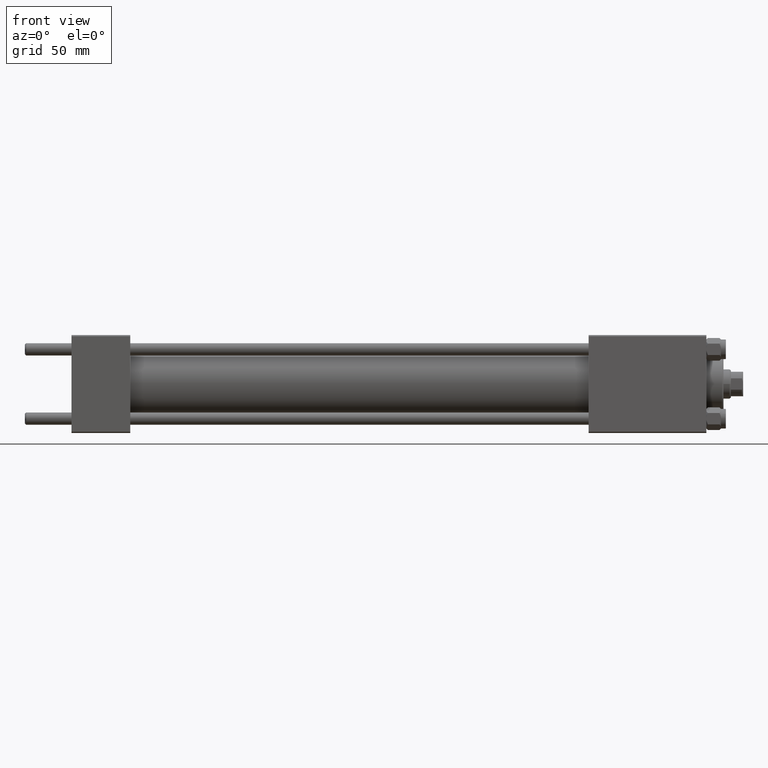
[diagram: clean part render]
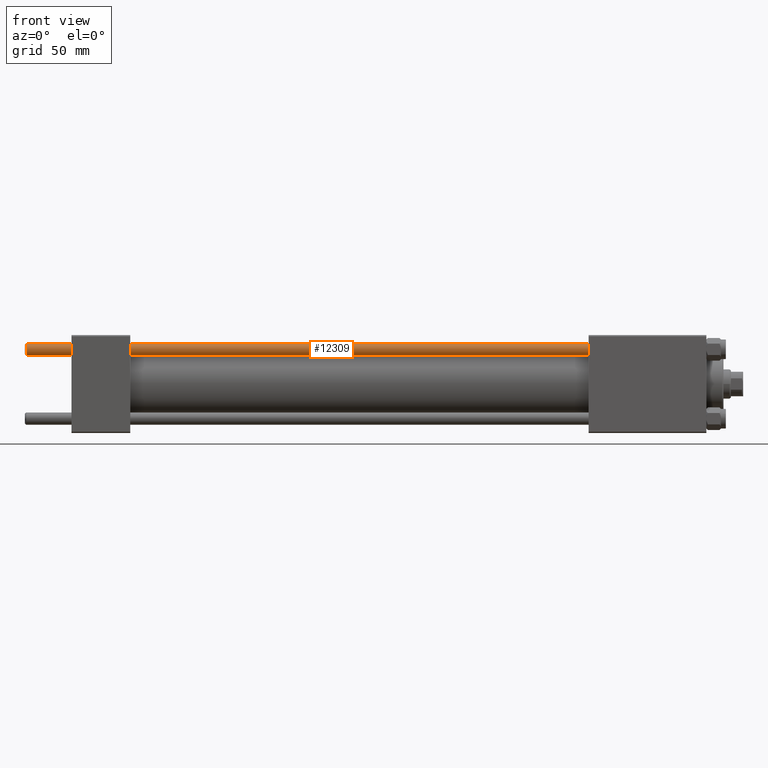
[diagram: same view with one face highlighted and labeled with its STEP entity id]
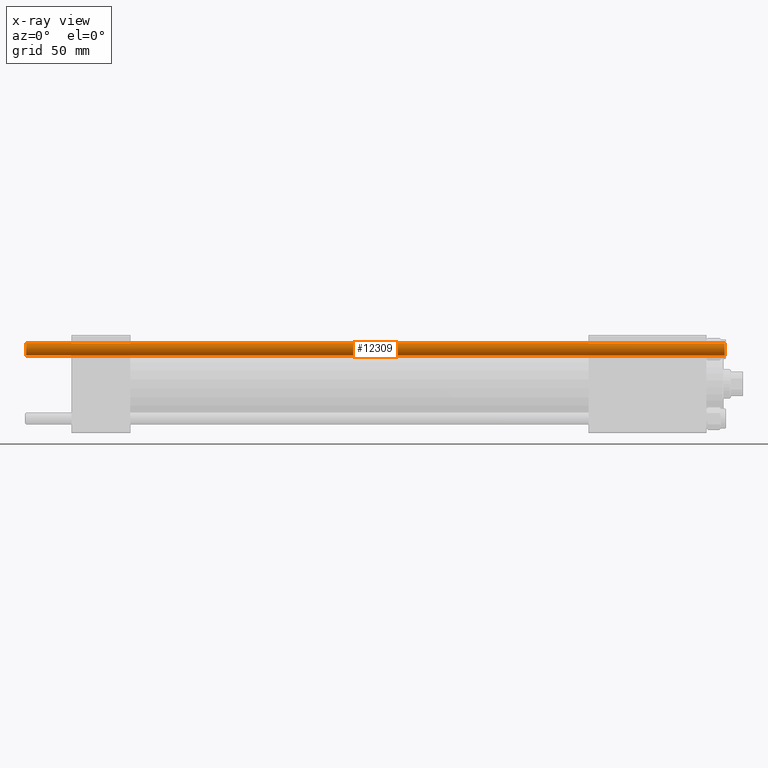
[diagram: x-ray of the same camera — body ghosted, the highlighted face saturated]
A machine part, front view. The second image highlights one B-rep face of the part: STEP entity #12309.
The next image is the same camera in x-ray: the body ghosted, the highlighted face saturated — about 0% of this face is hidden behind the body in this view.
In plain terms, the highlighted cylindrical surface (edge-blend (fillet) strip) has radius 2.5 mm, axis along (1, -0, 0).
Its self-contained STEP definition (entity closure, byte-faithful):
#621 = VERTEX_POINT ( 'NONE', #40967 ) ;
#1771 = AXIS2_PLACEMENT_3D ( 'NONE', #11341, #30223, #34502 ) ;
#2359 = DIRECTION ( 'NONE',  ( -0.000000000000000000, -0.000000000000000000, -1.000000000000000000 ) ) ;
#3408 = CIRCLE ( 'NONE', #1771, 2.500000000000000000 ) ;
#5148 = CARTESIAN_POINT ( 'NONE',  ( -2.500000000000000000, 0.000000000000000000, 285.4999999999999432 ) ) ;
#5395 = LINE ( 'NONE', #35871, #42263 ) ;
#8809 = ORIENTED_EDGE ( 'NONE', *, *, #23359, .F. ) ;
#9440 = CARTESIAN_POINT ( 'NONE',  ( 0.000000000000000000, 0.000000000000000000, 286.0000000000000000 ) ) ;
#11341 = CARTESIAN_POINT ( 'NONE',  ( 0.000000000000000000, 0.000000000000000000, 285.4999999999999432 ) ) ;
#12309 = ADVANCED_FACE ( 'NONE', ( #30873 ), #15036, .T. ) ;
#13760 = DIRECTION ( 'NONE',  ( 1.000000000000000000, 0.000000000000000000, 0.000000000000000000 ) ) ;
#15036 = CYLINDRICAL_SURFACE ( 'NONE', #31021, 2.500000000000000000 ) ;
#16986 = DIRECTION ( 'NONE',  ( -0.000000000000000000, -0.000000000000000000, -1.000000000000000000 ) ) ;
#17291 = CARTESIAN_POINT ( 'NONE',  ( 0.000000000000000000, 0.000000000000000000, 0.4999999999999449329 ) ) ;
#19023 = CARTESIAN_POINT ( 'NONE',  ( -2.500000000000000000, 0.000000000000000000, 286.0000000000000000 ) ) ;
#19431 = EDGE_CURVE ( 'NONE', #23522, #30827, #31510, .T. ) ;
#20126 = EDGE_CURVE ( 'NONE', #21430, #621, #3408, .T. ) ;
#21054 = DIRECTION ( 'NONE',  ( -0.000000000000000000, -0.000000000000000000, 1.000000000000000000 ) ) ;
#21430 = VERTEX_POINT ( 'NONE', #5148 ) ;
#23359 = EDGE_CURVE ( 'NONE', #21430, #30827, #30347, .T. ) ;
#23522 = VERTEX_POINT ( 'NONE', #28290 ) ;
#28290 = CARTESIAN_POINT ( 'NONE',  ( 2.500000000000000000, 3.061616997868383141E-16, 0.4999999999999449329 ) ) ;
#28319 = DIRECTION ( 'NONE',  ( -1.000000000000000000, 0.000000000000000000, 0.000000000000000000 ) ) ;
#28760 = EDGE_LOOP ( 'NONE', ( #41001, #45307, #48458, #8809 ) ) ;
#30223 = DIRECTION ( 'NONE',  ( 0.000000000000000000, 0.000000000000000000, -1.000000000000000000 ) ) ;
#30347 = LINE ( 'NONE', #19023, #45318 ) ;
#30827 = VERTEX_POINT ( 'NONE', #34748 ) ;
#30873 = FACE_OUTER_BOUND ( 'NONE', #28760, .T. ) ;
#31021 = AXIS2_PLACEMENT_3D ( 'NONE', #9440, #16986, #28319 ) ;
#31510 = CIRCLE ( 'NONE', #44362, 2.500000000000000000 ) ;
#32225 = EDGE_CURVE ( 'NONE', #621, #23522, #5395, .T. ) ;
#34378 = DIRECTION ( 'NONE',  ( -0.000000000000000000, -0.000000000000000000, -1.000000000000000000 ) ) ;
#34502 = DIRECTION ( 'NONE',  ( 1.000000000000000000, 0.000000000000000000, 0.000000000000000000 ) ) ;
#34748 = CARTESIAN_POINT ( 'NONE',  ( -2.500000000000000000, 0.000000000000000000, 0.4999999999999449329 ) ) ;
#35871 = CARTESIAN_POINT ( 'NONE',  ( 2.500000000000000000, 3.061616997868383141E-16, 286.0000000000000000 ) ) ;
#40967 = CARTESIAN_POINT ( 'NONE',  ( 2.500000000000000000, 3.061616997868383141E-16, 285.4999999999999432 ) ) ;
#41001 = ORIENTED_EDGE ( 'NONE', *, *, #20126, .T. ) ;
#42263 = VECTOR ( 'NONE', #2359, 1000.000000000000000 ) ;
#44362 = AXIS2_PLACEMENT_3D ( 'NONE', #17291, #21054, #13760 ) ;
#45307 = ORIENTED_EDGE ( 'NONE', *, *, #32225, .T. ) ;
#45318 = VECTOR ( 'NONE', #34378, 1000.000000000000000 ) ;
#48458 = ORIENTED_EDGE ( 'NONE', *, *, #19431, .T. ) ;